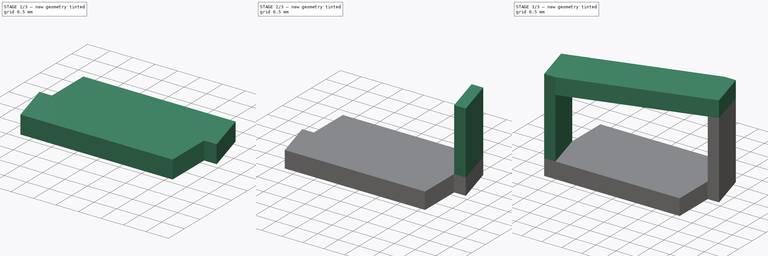
[diagram: build sequence overview — one tinted view per stage of 3, left to right]
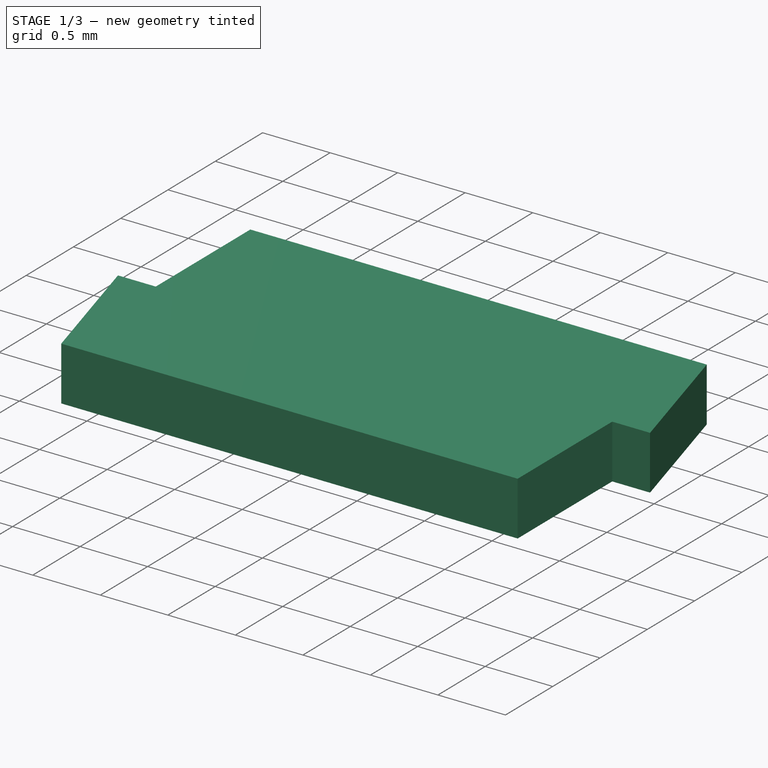
[diagram: stage 1 of 3 — iso view after this stage's code; geometry added in this stage tinted green]
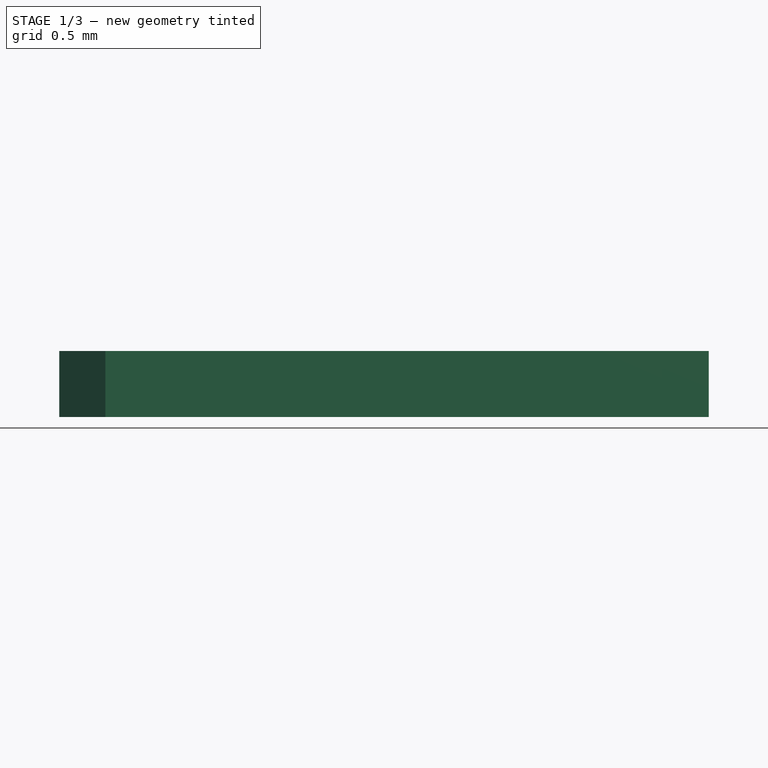
[diagram: stage 1 of 3 — front view after this stage's code; geometry added in this stage tinted green]
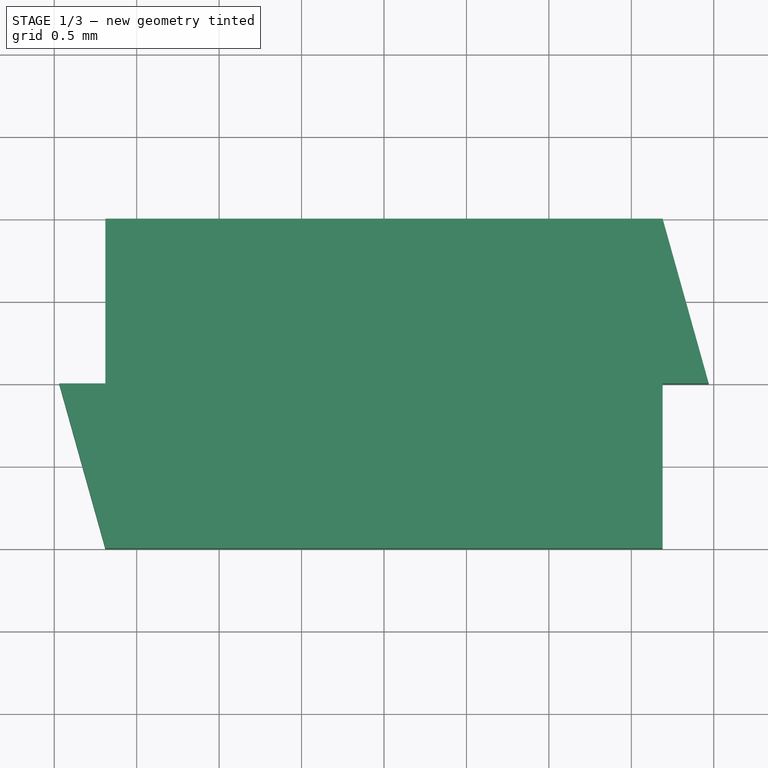
[diagram: stage 1 of 3 — top view after this stage's code; geometry added in this stage tinted green]
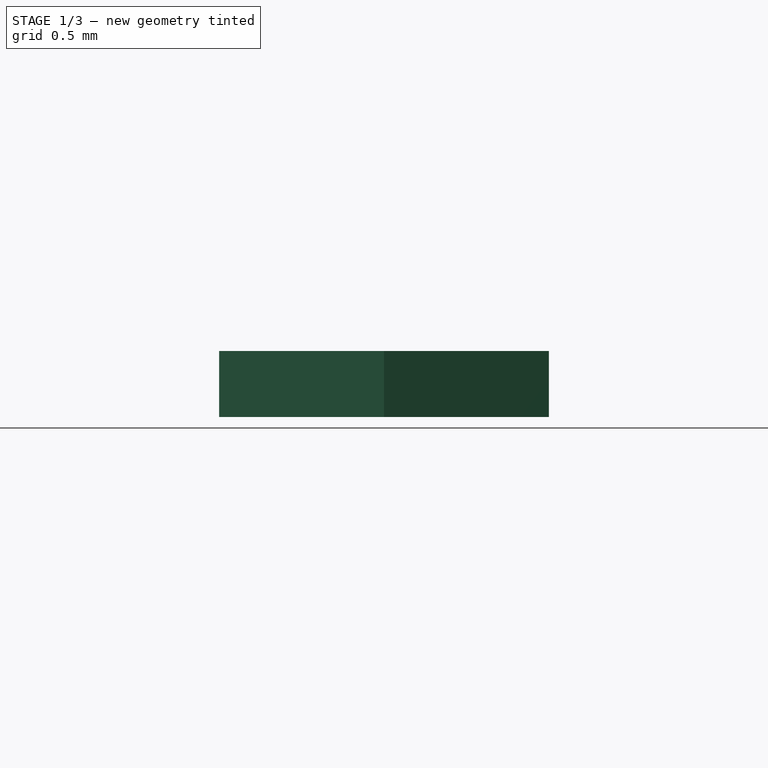
[diagram: stage 1 of 3 — right view after this stage's code; geometry added in this stage tinted green]
FCSTD DOCUMENT  (FreeCAD 0.18R16131 (Git))
Label: keystone_5016
License: All rights reserved
LicenseURL: http://en.wikipedia.org/wiki/All_rights_reserved
objects: Sketcher::SketchObject×3, PartDesign::Pad×3, PartDesign::PolarPattern×2, PartDesign::Body×1
note: 12 computed .brp shape members not serialized (recipe doc carries the construction recipe); baked Part::Feature solids carry a one-line shape summary decoded from their .brp

FEATURE [Sketcher::SketchObject] Sketch
  MapMode = 5
  Support = -> [XY_Plane]
  sketch-geometry (4):
    g0: LineSegment StartX=-1.69 StartY=1 StartZ=0 EndX=1.69 EndY=1 EndZ=0
    g1: LineSegment StartX=1.69 StartY=1 StartZ=0 EndX=1.97 EndY=0 EndZ=0
    g2: LineSegment StartX=1.97 StartY=0 StartZ=0 EndX=-1.69 EndY=0 EndZ=0
    g3: LineSegment StartX=-1.69 StartY=0 StartZ=0 EndX=-1.69 EndY=1 EndZ=0
  constraints (12):
    c: Coincident(g0,g1)
    c: Coincident(g1,g2)
    c: Coincident(g2,g3)
    c: Coincident(g3,g0)
    c: Horizontal(g2)
    c: Vertical(g3)
    c: Distance(g0) = 3.38
    c: Distance(g2) = 3.66
    c: Distance(g3) = 1
    c: PointOnObject(g1,g-1)
    c: Horizontal(g0)
    c: DistanceX(g1) = 1.97
FEATURE [PartDesign::Pad] Pad
  Length = 0.4
  Length2 = 100
  Profile = -> Sketch
  Type = 0
FEATURE [PartDesign::PolarPattern] PolarPattern
  Angle = 360
  Axis = -> Sketch [N_Axis]
  BaseFeature = -> Pad
  Occurrences = 2
  Originals = -> [Pad]
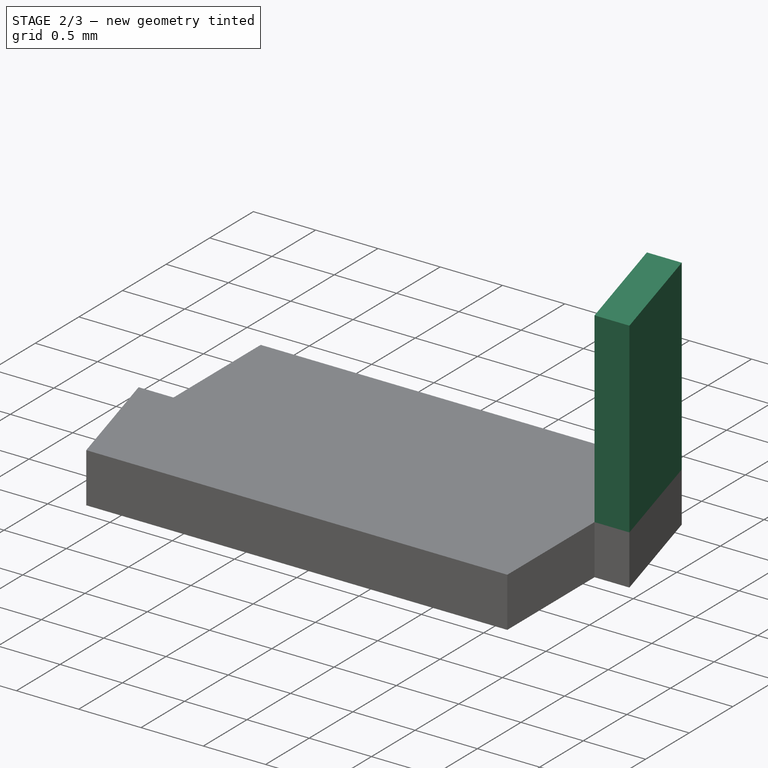
[diagram: stage 2 of 3 — iso view after this stage's code; geometry added in this stage tinted green]
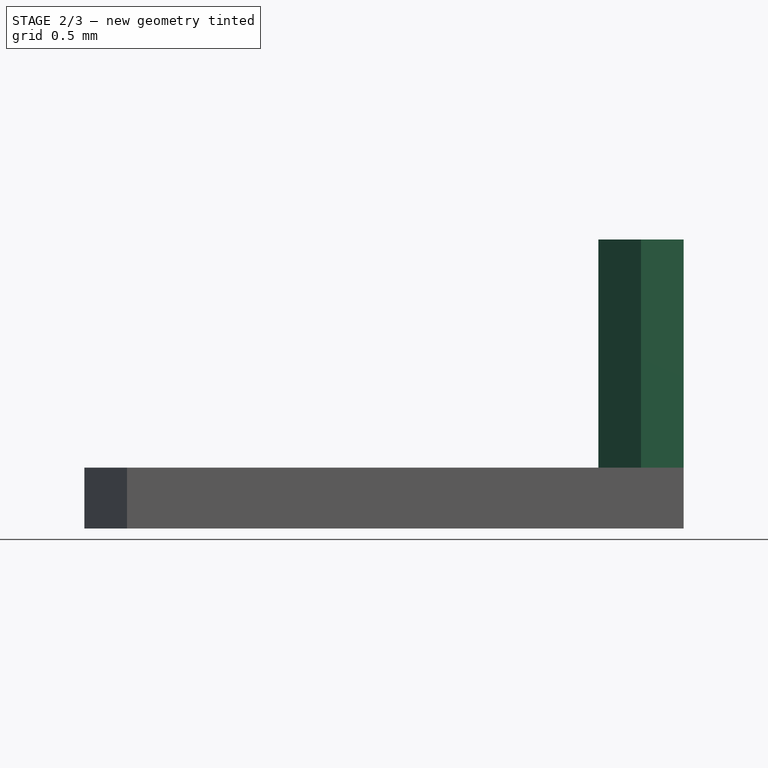
[diagram: stage 2 of 3 — front view after this stage's code; geometry added in this stage tinted green]
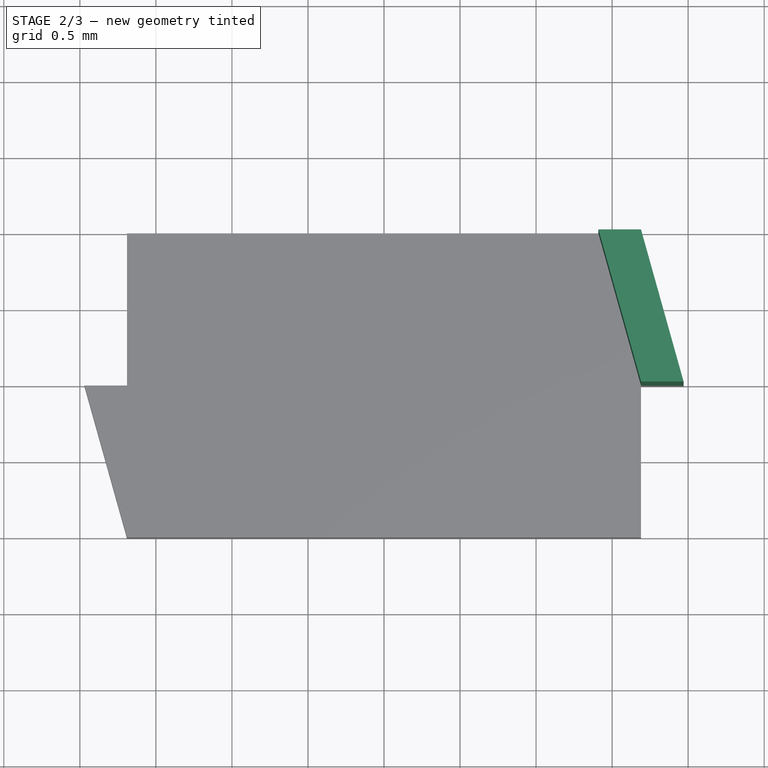
[diagram: stage 2 of 3 — top view after this stage's code; geometry added in this stage tinted green]
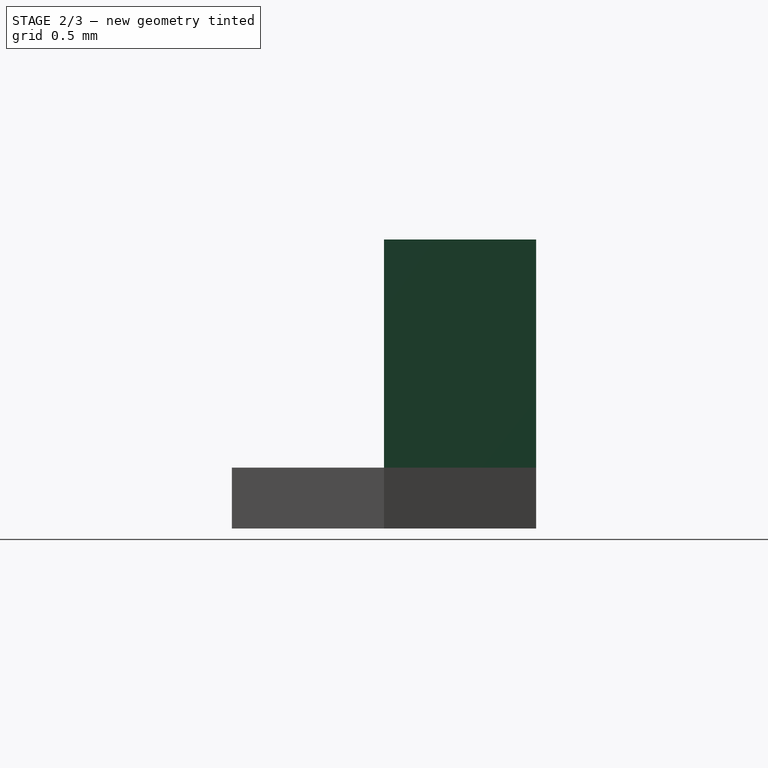
[diagram: stage 2 of 3 — right view after this stage's code; geometry added in this stage tinted green]
FEATURE [Sketcher::SketchObject] Sketch001
  ExternalGeometry = -> [PolarPattern]
  MapMode = 5
  Placement = pos=(0,0,0.4) rot=(0,0,1;0rad)
  Support = -> [PolarPattern]
  sketch-geometry (4):
    g0: LineSegment StartX=1.41 StartY=1 StartZ=0 EndX=1.69 EndY=1 EndZ=0
    g1: LineSegment StartX=1.69 StartY=1 StartZ=0 EndX=1.97 EndY=0 EndZ=0
    g2: LineSegment StartX=1.97 StartY=0 StartZ=0 EndX=1.69 EndY=-2e-16 EndZ=0
    g3: LineSegment StartX=1.69 StartY=-2e-16 StartZ=0 EndX=1.41 EndY=1 EndZ=0
  constraints (9):
    c: Coincident(g0,g1)
    c: Coincident(g1,g2)
    c: Coincident(g2,g3)
    c: Coincident(g3,g0)
    c: Coincident(g-4,g0)
    c: Horizontal(g0)
    c: Coincident(g-4,g1)
    c: Coincident(g2,g-5)
    c: Equal(g3,g1)
FEATURE [PartDesign::Pad] Pad001
  BaseFeature = -> PolarPattern
  Length = 1.5
  Length2 = 100
  Profile = -> Sketch001
  Type = 0
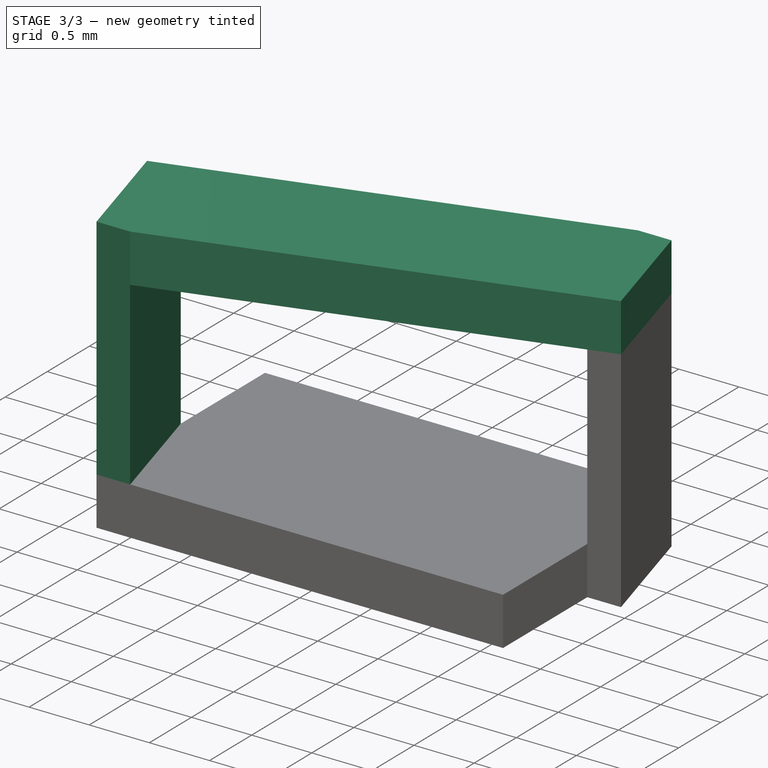
[diagram: stage 3 of 3 — iso view after this stage's code; geometry added in this stage tinted green]
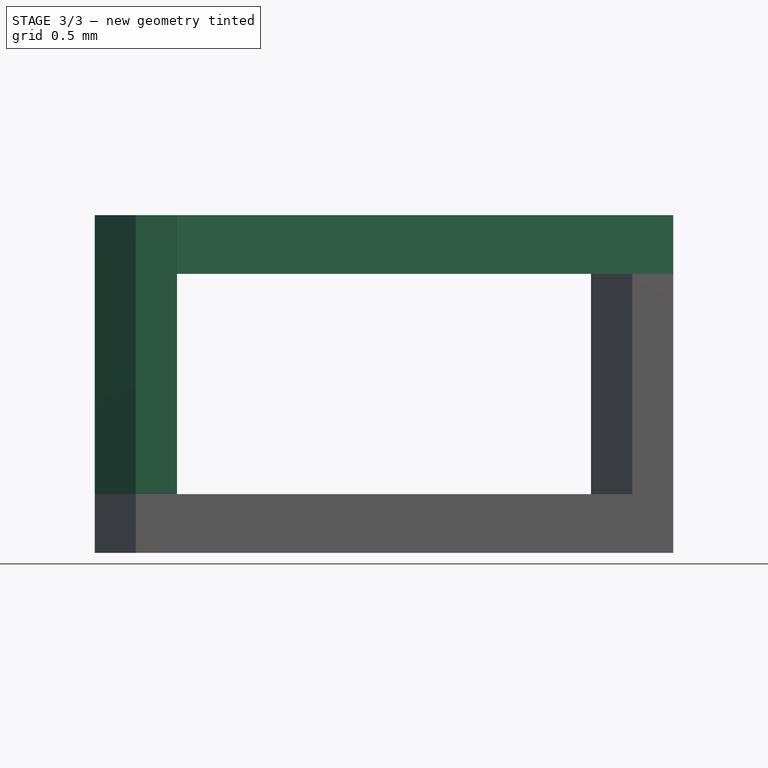
[diagram: stage 3 of 3 — front view after this stage's code; geometry added in this stage tinted green]
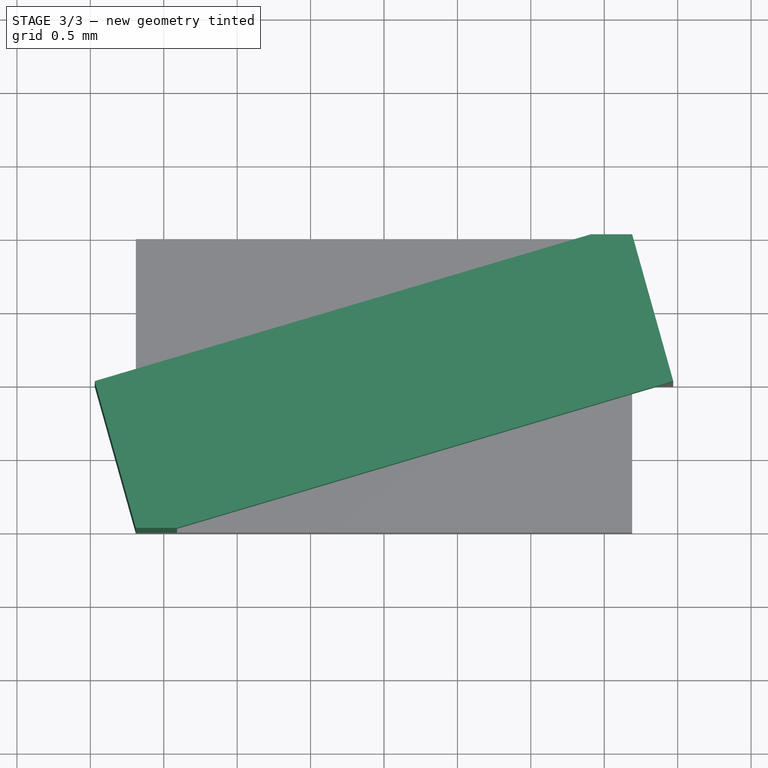
[diagram: stage 3 of 3 — top view after this stage's code; geometry added in this stage tinted green]
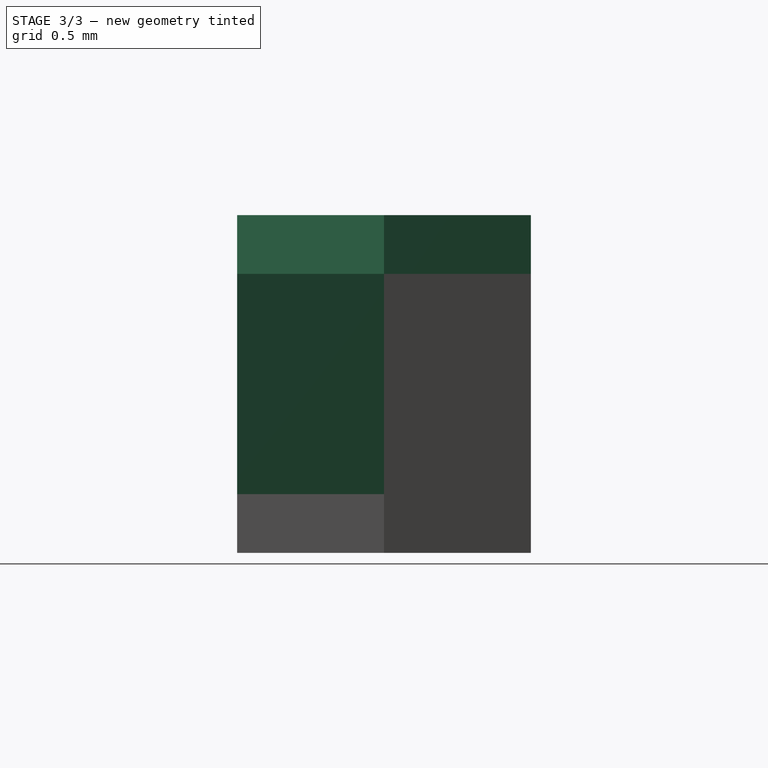
[diagram: stage 3 of 3 — right view after this stage's code; geometry added in this stage tinted green]
FEATURE [PartDesign::PolarPattern] PolarPattern001
  Angle = 360
  Axis = -> Sketch001 [N_Axis]
  BaseFeature = -> Pad001
  Occurrences = 2
  Originals = -> [Pad001]
FEATURE [Sketcher::SketchObject] Sketch002
  ExternalGeometry = -> [PolarPattern001]
  MapMode = 5
  Placement = pos=(0,0,1.9) rot=(0,0,1;0rad)
  Support = -> [PolarPattern001]
  sketch-geometry (6):
    g0: LineSegment StartX=1.41 StartY=1 StartZ=0 EndX=1.69 EndY=1 EndZ=0
    g1: LineSegment StartX=1.69 StartY=1 StartZ=0 EndX=1.97 EndY=0 EndZ=0
    g2: LineSegment StartX=1.97 StartY=0 StartZ=0 EndX=-1.41 EndY=-1 EndZ=0
    g3: LineSegment StartX=-1.41 StartY=-1 StartZ=0 EndX=-1.69 EndY=-1 EndZ=0
    g4: LineSegment StartX=-1.69 StartY=-1 StartZ=0 EndX=-1.97 EndY=2e-16 EndZ=0
    g5: LineSegment StartX=-1.97 StartY=2e-16 StartZ=0 EndX=1.41 EndY=1 EndZ=0
  constraints (12):
    c: Coincident(g0,g1)
    c: Coincident(g1,g2)
    c: Coincident(g2,g3)
    c: Coincident(g3,g4)
    c: Coincident(g4,g5)
    c: Coincident(g0,g5)
    c: Coincident(g-5,g4)
    c: Coincident(g-6,g3)
    c: Coincident(g2,g-6)
    c: Coincident(g-4,g1)
    c: Coincident(g-4,g0)
    c: Coincident(g0,g-3)
FEATURE [PartDesign::Pad] Pad002
  BaseFeature = -> PolarPattern001
  Length = 0.4
  Length2 = 100
  Profile = -> Sketch002
  Type = 0
FEATURE [PartDesign::Body] Body
  Group = -> [Sketch,Pad,PolarPattern,Sketch001,Pad001,PolarPattern001,Sketch002,Pad002]
  Origin = -> Origin
  Tip = -> Pad002
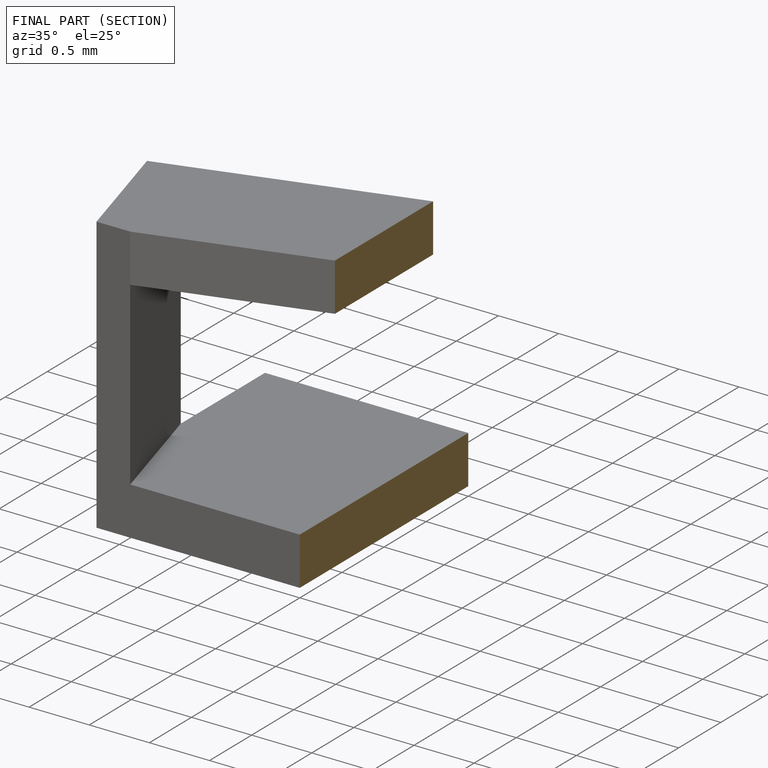
[diagram: finished part — half-section view (interior)]
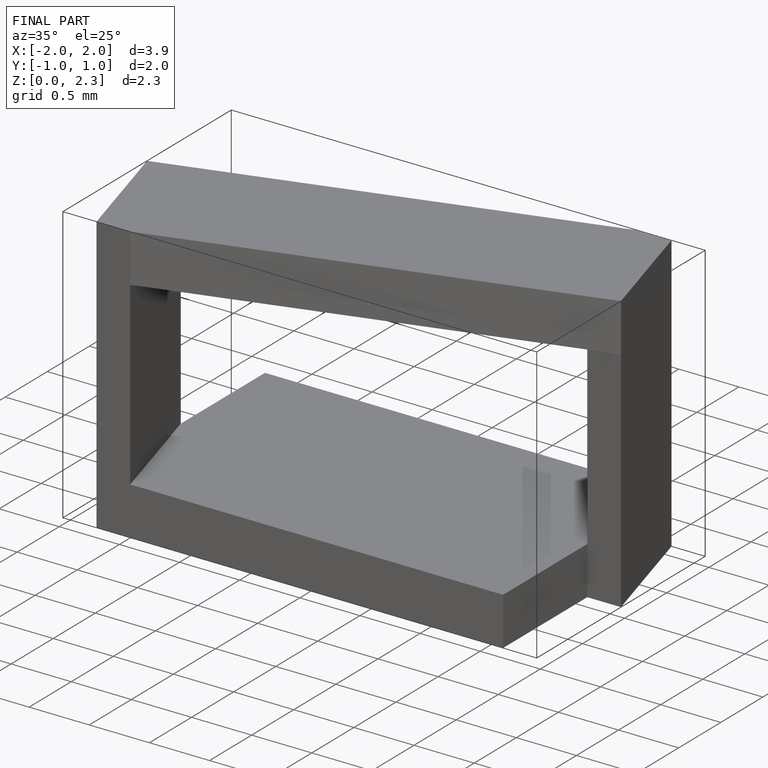
[diagram: finished part — iso view with bounding-box wireframe]
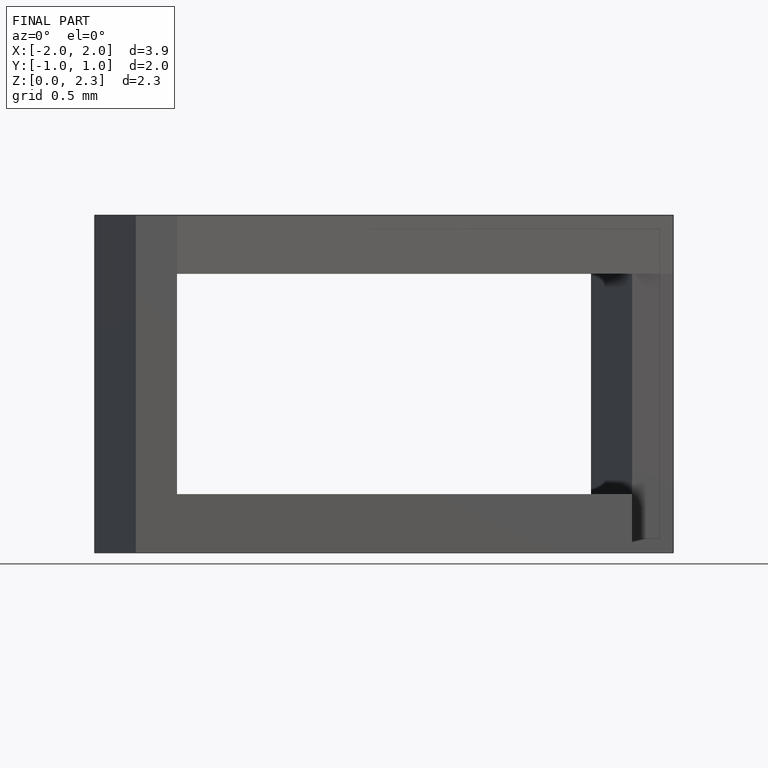
[diagram: finished part — front view with bounding-box wireframe]
